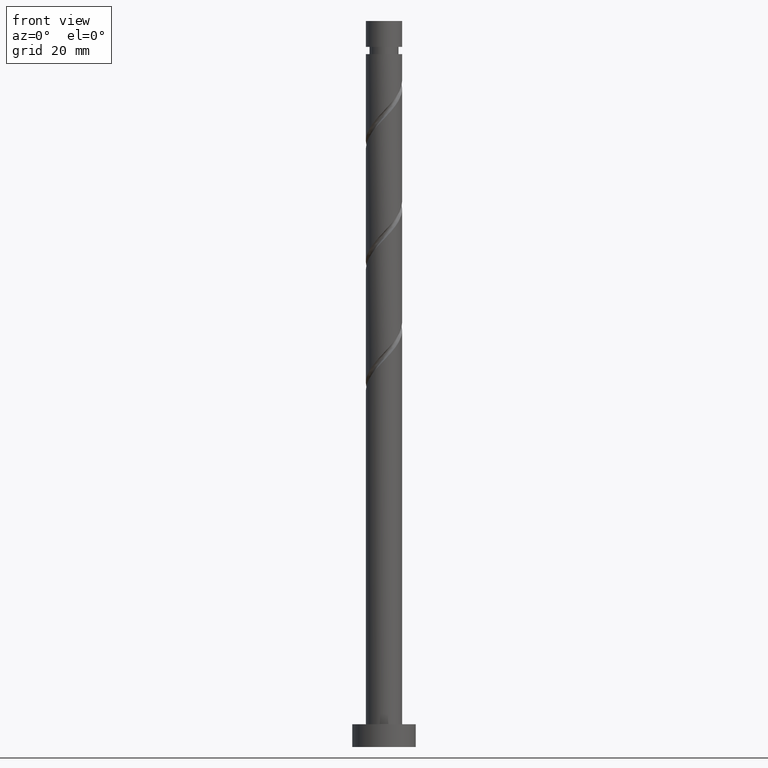
[diagram: clean part render]
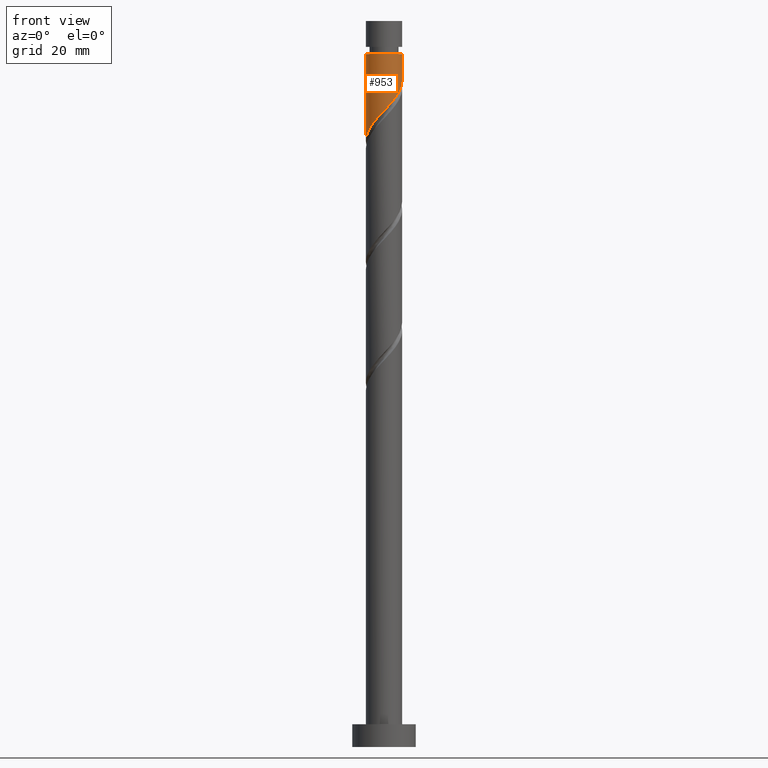
[diagram: same view with one face highlighted and labeled with its STEP entity id]
A machine part, front view. The second image highlights one B-rep face of the part: STEP entity #953.
In plain terms, the highlighted cylindrical surface (edge-blend (fillet) strip) has radius 4 mm, axis along (-0, -0, -1).
Its self-contained STEP definition (entity closure, byte-faithful):
#8 =( BOUNDED_CURVE ( )  B_SPLINE_CURVE ( 2, ( #1479, #1460, #51, #1319, #31, #912, #787, #162, #1208, #1088, #41, #542, #1176, #1049, #796, #1071, #181, #946, #1082, #59, #1595, #404, #659, #425, #773 ),
 .UNSPECIFIED., .F., .T. ) 
 B_SPLINE_CURVE_WITH_KNOTS ( ( 3, 2, 2, 2, 2, 2, 2, 2, 2, 2, 2, 2, 3 ),
 ( 0.3045252162417511621, 0.3068181818181818232, 0.3181818181818181768, 0.3295454545454545303, 0.3409090909090908839, 0.3522727272727272929, 0.3636363636363636465, 0.3750000000000000000, 0.3863636363636363535, 0.3977272727272727071, 0.4090909090909091161, 0.4204545454545454697, 0.4295252162417512731 ),
 .UNSPECIFIED. ) 
 CURVE ( )  GEOMETRIC_REPRESENTATION_ITEM ( )  RATIONAL_B_SPLINE_CURVE ( ( 0.9061101570135550176, 0.9072237824201371259, 0.9090909090909147228, 0.8998376744372170721, 0.9090909090909147228, 0.8998376744372170721, 0.9090909090909147228, 0.8998376744372170721, 0.9090909090909147228, 0.8998376744372170721, 0.9090909090909147228, 0.8998376744372170721, 0.9090909090909147228, 0.8998376744372170721, 0.9090909090909147228, 0.8998376744372170721, 0.9090909090909147228, 0.8998376744372170721, 0.9090909090909147228, 0.8998376744372170721, 0.9090909090909147228, 0.8998376744372170721, 0.9090909090909147228, 0.9017048011079945580, 0.9061101570135550176 ) ) 
 REPRESENTATION_ITEM ( '' )  );
#31 = CARTESIAN_POINT ( 'NONE',  ( 3.766818871216631948, -1.345762085751508685, 145.4352326313790229 ) ) ;
#41 = CARTESIAN_POINT ( 'NONE',  ( 1.449682647155072779, -3.728058505782527732, 141.7988689950153685 ) ) ;
#45 = VECTOR ( 'NONE', #574, 1000.000000000000000 ) ;
#51 = CARTESIAN_POINT ( 'NONE',  ( 3.993381233129877916, -0.2300137536889543255, 146.6473538435002411 ) ) ;
#59 = CARTESIAN_POINT ( 'NONE',  ( -3.201206812320809281, -2.466379960577144814, 136.3443235404699578 ) ) ;
#93 = FACE_OUTER_BOUND ( 'NONE', #1181, .T. ) ;
#126 = ORIENTED_EDGE ( 'NONE', *, *, #482, .F. ) ;
#162 = CARTESIAN_POINT ( 'NONE',  ( 2.896854998579483809, -2.817620677520438655, 143.6170508131972099 ) ) ;
#181 = CARTESIAN_POINT ( 'NONE',  ( -1.868138386609202728, -3.536956172823909839, 138.1625053586517993 ) ) ;
#217 = LINE ( 'NONE', #853, #1034 ) ;
#267 = DIRECTION ( 'NONE',  ( -1.000000000000000000, 0.000000000000000000, 0.000000000000000000 ) ) ;
#268 = EDGE_CURVE ( 'NONE', #1563, #642, #822, .T. ) ;
#380 = EDGE_CURVE ( 'NONE', #1197, #868, #217, .T. ) ;
#404 = CARTESIAN_POINT ( 'NONE',  ( -3.766394975944542534, -1.464590062224028433, 135.1322023283487681 ) ) ;
#425 = CARTESIAN_POINT ( 'NONE',  ( -3.999999999999999112, -0.4581157095404951862, 134.0433743363784913 ) ) ;
#460 = CARTESIAN_POINT ( 'NONE',  ( -4.000000000000000000, -2.183695822710489317E-15, 133.5574143834072345 ) ) ;
#479 = CARTESIAN_POINT ( 'NONE',  ( 3.999999999999998224, 1.361070684018181668E-15, 146.8907477167405489 ) ) ;
#482 = EDGE_CURVE ( 'NONE', #642, #868, #8, .T. ) ;
#542 = CARTESIAN_POINT ( 'NONE',  ( 0.9136687552802119638, -3.936491403624601038, 141.1928083889548020 ) ) ;
#574 = DIRECTION ( 'NONE',  ( -0.000000000000000000, -0.000000000000000000, -1.000000000000000000 ) ) ;
#593 = CYLINDRICAL_SURFACE ( 'NONE', #1634, 4.000000000000000000 ) ;
#619 = DIRECTION ( 'NONE',  ( -0.000000000000000000, -0.000000000000000000, -1.000000000000000000 ) ) ;
#633 = CIRCLE ( 'NONE', #1201, 3.999999999999994227 ) ;
#642 = VERTEX_POINT ( 'NONE', #479 ) ;
#659 = CARTESIAN_POINT ( 'NONE',  ( -3.896423597087599777, -0.9043689247530154462, 134.5261417222881164 ) ) ;
#773 = CARTESIAN_POINT ( 'NONE',  ( -4.000000000000000000, -2.183695822710489317E-15, 133.5574143834072345 ) ) ;
#781 = CARTESIAN_POINT ( 'NONE',  ( -3.999999999999994227, 0.000000000000000000, 152.7079599041063318 ) ) ;
#787 = CARTESIAN_POINT ( 'NONE',  ( 3.235091246491822670, -2.352484777181772735, 144.2231114192578332 ) ) ;
#796 = CARTESIAN_POINT ( 'NONE',  ( -0.7959899496852964607, -3.919999999999999041, 139.3746265707729890 ) ) ;
#822 = LINE ( 'NONE', #1339, #45 ) ;
#853 = CARTESIAN_POINT ( 'NONE',  ( -4.000000000000000000, 0.000000000000000000, 160.0000000000000000 ) ) ;
#863 = CARTESIAN_POINT ( 'NONE',  ( 3.999999999999994227, 4.898587196589409870E-16, 152.7079599041063318 ) ) ;
#868 = VERTEX_POINT ( 'NONE', #460 ) ;
#912 = CARTESIAN_POINT ( 'NONE',  ( 3.573327494404164195, -1.887348876843107037, 144.8291720253184280 ) ) ;
#946 = CARTESIAN_POINT ( 'NONE',  ( -2.376675911072815062, -3.268358422650717188, 137.5564447525911476 ) ) ;
#953 = ADVANCED_FACE ( 'NONE', ( #93 ), #593, .T. ) ;
#977 = DIRECTION ( 'NONE',  ( -0.000000000000000000, -0.000000000000000000, -1.000000000000000000 ) ) ;
#1027 = CARTESIAN_POINT ( 'NONE',  ( 0.000000000000000000, 0.000000000000000000, 152.7079599041063318 ) ) ;
#1034 = VECTOR ( 'NONE', #1272, 1000.000000000000000 ) ;
#1049 = CARTESIAN_POINT ( 'NONE',  ( -0.2323790372250016945, -4.034446077002896480, 139.9806871768335839 ) ) ;
#1071 = CARTESIAN_POINT ( 'NONE',  ( -1.359600862145591504, -3.805553922997102934, 138.7685659647123657 ) ) ;
#1082 = CARTESIAN_POINT ( 'NONE',  ( -2.788941361696811949, -2.867369191613930557, 136.9503841465305811 ) ) ;
#1088 = CARTESIAN_POINT ( 'NONE',  ( 1.985696539029933927, -3.519625607940455314, 142.4049296010760770 ) ) ;
#1110 = ORIENTED_EDGE ( 'NONE', *, *, #268, .F. ) ;
#1118 = CARTESIAN_POINT ( 'NONE',  ( 0.000000000000000000, 0.000000000000000000, 160.0000000000000000 ) ) ;
#1139 = ORIENTED_EDGE ( 'NONE', *, *, #380, .T. ) ;
#1168 = ORIENTED_EDGE ( 'NONE', *, *, #1491, .T. ) ;
#1176 = CARTESIAN_POINT ( 'NONE',  ( 0.3406448590276041077, -3.985468740313749425, 140.5867477828941503 ) ) ;
#1181 = EDGE_LOOP ( 'NONE', ( #1110, #1168, #1139, #126 ) ) ;
#1197 = VERTEX_POINT ( 'NONE', #781 ) ;
#1201 = AXIS2_PLACEMENT_3D ( 'NONE', #1027, #619, #267 ) ;
#1208 = CARTESIAN_POINT ( 'NONE',  ( 2.441275768804707536, -3.168623142730448095, 143.0109902071366150 ) ) ;
#1272 = DIRECTION ( 'NONE',  ( -0.000000000000000000, -0.000000000000000000, -1.000000000000000000 ) ) ;
#1319 = CARTESIAN_POINT ( 'NONE',  ( 3.960310248029101032, -0.8041752946599105556, 146.0412932374397315 ) ) ;
#1339 = CARTESIAN_POINT ( 'NONE',  ( 4.000000000000000000, 4.898587196589412829E-16, 160.0000000000000000 ) ) ;
#1460 = CARTESIAN_POINT ( 'NONE',  ( 3.999999999999998224, -0.1151021060952811675, 146.7686497120222953 ) ) ;
#1475 = DIRECTION ( 'NONE',  ( -1.000000000000000000, 0.000000000000000000, 0.000000000000000000 ) ) ;
#1479 = CARTESIAN_POINT ( 'NONE',  ( 3.999999999999998224, 1.361070684018181668E-15, 146.8907477167405489 ) ) ;
#1491 = EDGE_CURVE ( 'NONE', #1563, #1197, #633, .T. ) ;
#1563 = VERTEX_POINT ( 'NONE', #863 ) ;
#1595 = CARTESIAN_POINT ( 'NONE',  ( -3.483800894132674575, -1.965485011400587068, 135.7382629344093630 ) ) ;
#1634 = AXIS2_PLACEMENT_3D ( 'NONE', #1118, #977, #1475 ) ;